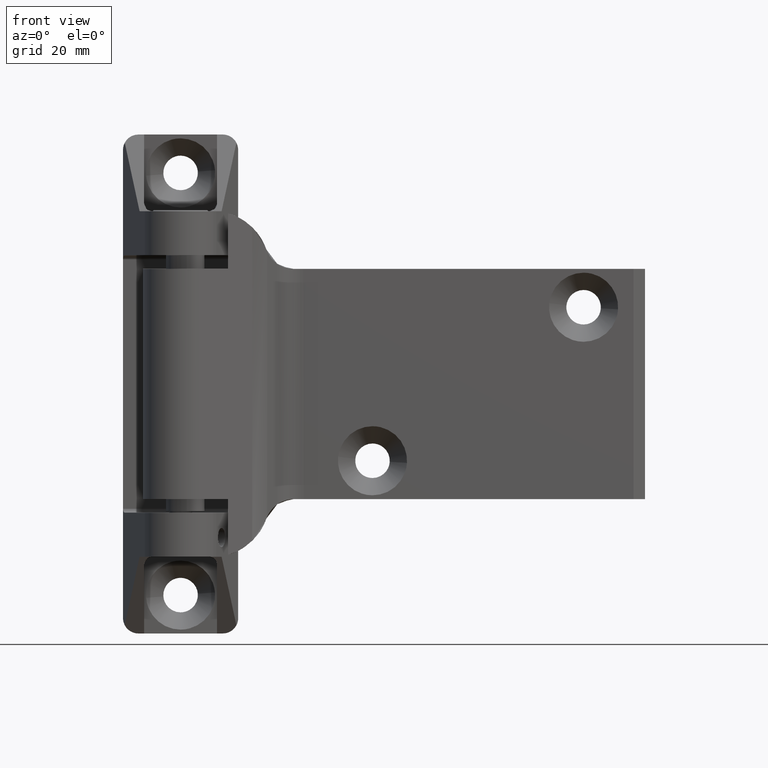
[diagram: clean part render]
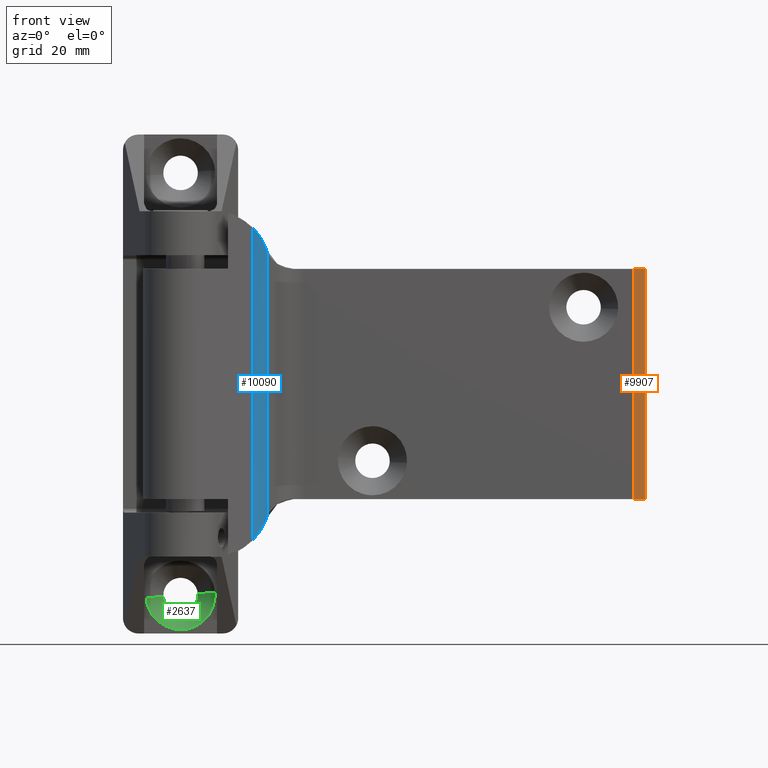
[diagram: same view with three faces highlighted in distinct colors, each labeled with its STEP entity id]
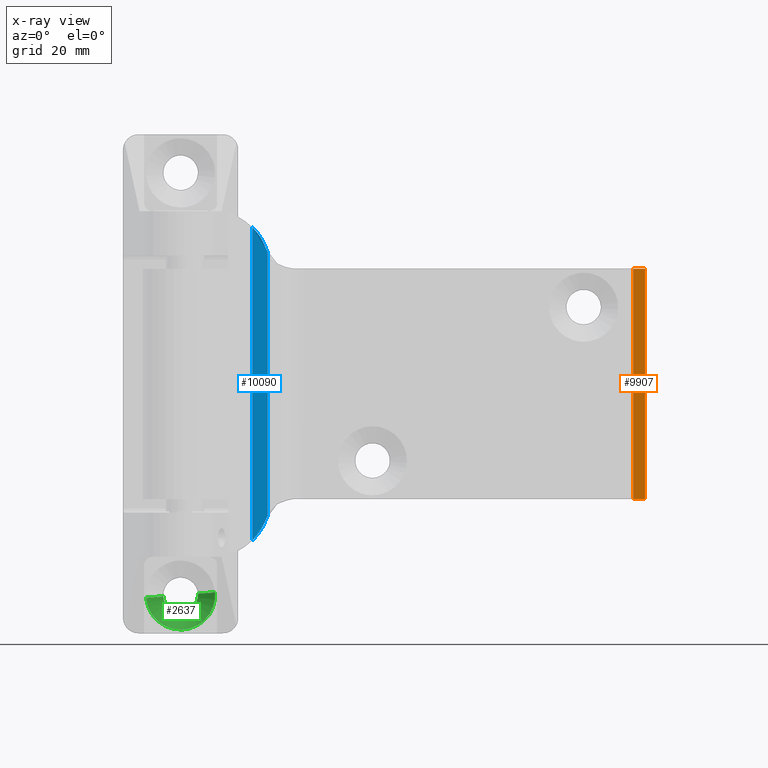
[diagram: x-ray of the same camera — body ghosted, the three highlighted faces saturated]
A machine part, front view with three faces highlighted in distinct colors.
The next image is the same camera in x-ray (body ghosted, the three faces saturated) — at least one of them is partly hidden behind the body in this view.
Their STEP definitions:

[orange] entity #9907 — the highlighted face is a freeform B-spline surface patch.
#9446=CARTESIAN_POINT('',(118.000005452522400,9.800000522471919,29.999985920499700));
#9447=VERTEX_POINT('',#9446);
#9453=CARTESIAN_POINT('',(121.000005595014600,12.800000664952901,29.999985920499700));
#9454=VERTEX_POINT('',#9453);
#9455=CARTESIAN_POINT('',(118.000005452522400,9.800000522471919,29.999985920499700));
#9456=CARTESIAN_POINT('',(121.000005595014600,12.800000664952901,29.999985920499700));
#9457=QUASI_UNIFORM_CURVE('',1,(#9455,#9456),.UNSPECIFIED.,.F.,.U.);
#9458=EDGE_CURVE('',#9447,#9454,#9457,.T.);
#9689=CARTESIAN_POINT('',(118.000005452522400,9.800000522471919,-30.000016929343651));
#9690=VERTEX_POINT('',#9689);
#9727=CARTESIAN_POINT('',(121.000005595014800,12.800000664952901,-30.000016929343548));
#9728=VERTEX_POINT('',#9727);
#9734=CARTESIAN_POINT('',(121.000005595014800,12.800000664952901,-30.000016929343548));
#9735=CARTESIAN_POINT('',(118.000005452522400,9.800000522471919,-30.000016929343651));
#9736=QUASI_UNIFORM_CURVE('',1,(#9734,#9735),.UNSPECIFIED.,.F.,.U.);
#9737=EDGE_CURVE('',#9728,#9690,#9736,.T.);
#9877=CARTESIAN_POINT('',(121.000005595014600,12.800000664952901,29.999985920499700));
#9878=CARTESIAN_POINT('',(121.000005595014800,12.800000664952901,-30.000016929343548));
#9879=QUASI_UNIFORM_CURVE('',1,(#9877,#9878),.UNSPECIFIED.,.F.,.U.);
#9880=EDGE_CURVE('',#9454,#9728,#9879,.T.);
#9892=CARTESIAN_POINT('',(117.850156376568610,9.650151446517970,32.996987073031917));
#9893=CARTESIAN_POINT('',(121.149856307110600,12.949851377060041,32.996987073031917));
#9894=CARTESIAN_POINT('',(117.850156376568610,9.650151446517970,-32.997018618317703));
#9895=CARTESIAN_POINT('',(121.149856307110600,12.949851377060041,-32.997018618317703));
#9896=B_SPLINE_SURFACE_WITH_KNOTS('',1,1,((#9892,#9894),(#9893,#9895)),.UNSPECIFIED.,.F.,.F.,.U.,(2,2),(2,2),(0.0,4.666480393534120),(0.0,65.994005691349628),.UNSPECIFIED.);
#9897=CARTESIAN_POINT('',(118.000005452522400,9.800000522471919,29.999985920499700));
#9898=CARTESIAN_POINT('',(118.000005452522400,9.800000522471919,-30.000016929343651));
#9899=QUASI_UNIFORM_CURVE('',1,(#9897,#9898),.UNSPECIFIED.,.F.,.U.);
#9900=EDGE_CURVE('',#9447,#9690,#9899,.T.);
#9901=ORIENTED_EDGE('',*,*,#9900,.T.);
#9902=ORIENTED_EDGE('',*,*,#9737,.F.);
#9903=ORIENTED_EDGE('',*,*,#9880,.F.);
#9904=ORIENTED_EDGE('',*,*,#9458,.F.);
#9905=EDGE_LOOP('',(#9901,#9902,#9903,#9904));
#9906=FACE_OUTER_BOUND('',#9905,.T.);
#9907=ADVANCED_FACE('',(#9906),#9896,.F.);

[blue] entity #10090 — the highlighted face is a freeform B-spline surface patch.
#9180=CARTESIAN_POINT('',(22.369783500304148,0.980055172589944,35.026017534887352));
#9181=VERTEX_POINT('',#9180);
#9187=CARTESIAN_POINT('',(22.675432990105850,1.476169542492700,34.282030767912701));
#9188=VERTEX_POINT('',#9187);
#9189=CARTESIAN_POINT('',(22.369783500304148,0.980055172589976,35.026017534887387));
#9190=CARTESIAN_POINT('',(22.463076981145601,1.122225020693048,34.759021495786257));
#9191=CARTESIAN_POINT('',(22.566437962103059,1.287384623405065,34.511491762453602));
#9192=CARTESIAN_POINT('',(22.675432990105850,1.476169542492700,34.282030767912701));
#9193=QUASI_UNIFORM_CURVE('',3,(#9189,#9190,#9191,#9192),.UNSPECIFIED.,.F.,.U.);
#9194=EDGE_CURVE('',#9181,#9188,#9193,.T.);
#9292=CARTESIAN_POINT('',(18.665833855718098,-2.411234529328145,40.832703703242103));
#9293=VERTEX_POINT('',#9292);
#9307=CARTESIAN_POINT('',(22.369783500304148,0.980055172589944,35.026017534887352));
#9308=CARTESIAN_POINT('',(22.274320838547599,0.834579711721349,35.299220869422953));
#9309=CARTESIAN_POINT('',(22.171839456364079,0.686549590191545,35.567191928047912));
#9310=CARTESIAN_POINT('',(21.952868427519199,0.388459591304809,36.094487928034830));
#9311=CARTESIAN_POINT('',(21.836376952532529,0.238385347184673,36.353803485139622));
#9312=CARTESIAN_POINT('',(21.465522634182289,-0.211540511074316,37.120541583159152));
#9313=CARTESIAN_POINT('',(21.189901571929639,-0.510997437959561,37.616877592441853));
#9314=CARTESIAN_POINT('',(20.730269458238151,-0.949597839347131,38.342981932260557));
#9315=CARTESIAN_POINT('',(20.569329334380878,-1.094068931324332,38.581913921151617));
#9316=CARTESIAN_POINT('',(20.315564840604960,-1.307111607867606,38.935879662966997));
#9317=CARTESIAN_POINT('',(20.228821552684959,-1.377587655460702,39.053249006229180));
#9318=CARTESIAN_POINT('',(20.051582151124471,-1.516729180293819,39.285842693555800));
#9319=CARTESIAN_POINT('',(19.961109779021349,-1.585381995166145,39.401044932679540));
#9320=CARTESIAN_POINT('',(19.499273286228181,-1.923642253602455,39.971637981973643));
#9321=CARTESIAN_POINT('',(19.099680503669411,-2.178344720435173,40.410884047149622));
#9322=CARTESIAN_POINT('',(18.665833855718098,-2.411234529328145,40.832703703242103));
#9323=B_SPLINE_CURVE_WITH_KNOTS('',3,(#9307,#9308,#9309,#9310,#9311,#9312,#9313,#9314,#9315,#9316,#9317,#9318,#9319,#9320,#9321,#9322),.UNSPECIFIED.,.F.,.U.,(4,2,2,2,2,2,2,4),(0.0,0.125000000000001,0.250000000000001,0.500000000000003,0.625000000000003,0.687500000000003,0.750000000000003,1.0),.UNSPECIFIED.);
#9324=EDGE_CURVE('',#9181,#9293,#9323,.T.);
#9510=CARTESIAN_POINT('',(22.369783444535749,0.980055087604516,-35.026048703343797));
#9511=VERTEX_POINT('',#9510);
#9517=CARTESIAN_POINT('',(18.665833845678051,-2.411234534717690,-40.832734721851253));
#9518=VERTEX_POINT('',#9517);
#9519=CARTESIAN_POINT('',(18.665833845678051,-2.411234534717690,-40.832734721851253));
#9520=CARTESIAN_POINT('',(19.100519449674682,-2.177894373050120,-40.410099367839678));
#9521=CARTESIAN_POINT('',(19.498561417584479,-1.923928463132921,-39.972211329080409));
#9522=CARTESIAN_POINT('',(20.232082965250871,-1.387147652657484,-39.066626089571272));
#9523=CARTESIAN_POINT('',(20.567481945302639,-1.104203912091980,-38.598944748033553));
#9524=CARTESIAN_POINT('',(21.027825105912239,-0.666007915063125,-37.873538022268910));
#9525=CARTESIAN_POINT('',(21.174115645452030,-0.517643790713911,-37.627732761172652));
#9526=CARTESIAN_POINT('',(21.383098377595029,-0.292773700277518,-37.252566719305712));
#9527=CARTESIAN_POINT('',(21.451070614170860,-0.217367492490651,-37.126325380099360));
#9528=CARTESIAN_POINT('',(21.583267081598830,-0.066330003261736,-36.872140128290262));
#9529=CARTESIAN_POINT('',(21.647462841624279,0.009264031190968,-36.744260180010677));
#9530=CARTESIAN_POINT('',(21.834454680416268,0.235914173627233,-36.358103343890463));
#9531=CARTESIAN_POINT('',(21.951663687002529,0.386857850387281,-36.097324244956077));
#9532=CARTESIAN_POINT('',(22.171574260261821,0.686150529752810,-35.567956690383532));
#9533=CARTESIAN_POINT('',(22.274277230520809,0.834513260647416,-35.299376669613643));
#9534=CARTESIAN_POINT('',(22.369783444535749,0.980055087604516,-35.026048703343797));
#9535=B_SPLINE_CURVE_WITH_KNOTS('',3,(#9519,#9520,#9521,#9522,#9523,#9524,#9525,#9526,#9527,#9528,#9529,#9530,#9531,#9532,#9533,#9534),.UNSPECIFIED.,.F.,.U.,(4,2,2,2,2,2,2,4),(0.0,0.249999999999998,0.499999999999996,0.624999999999995,0.687499999999996,0.749999999999996,0.874999999999998,1.0),.UNSPECIFIED.);
#9536=EDGE_CURVE('',#9518,#9511,#9535,.T.);
#9659=CARTESIAN_POINT('',(22.675432990105850,1.476169542492700,-34.282063022724202));
#9660=VERTEX_POINT('',#9659);
#9674=CARTESIAN_POINT('',(22.675432990105850,1.476169542492700,-34.282063022724202));
#9675=CARTESIAN_POINT('',(22.566438000520240,1.287384689945554,-34.511523711561857));
#9676=CARTESIAN_POINT('',(22.463077009788488,1.122225061248527,-34.759053087192108));
#9677=CARTESIAN_POINT('',(22.369783444535749,0.980055087604516,-35.026048703343797));
#9678=QUASI_UNIFORM_CURVE('',3,(#9674,#9675,#9676,#9677),.UNSPECIFIED.,.F.,.U.);
#9679=EDGE_CURVE('',#9660,#9511,#9678,.T.);
#9944=CARTESIAN_POINT('',(18.665833855718098,-2.411234529328145,40.832703703242103));
#9945=CARTESIAN_POINT('',(18.665833845678051,-2.411234534717690,-40.832734721851253));
#9946=QUASI_UNIFORM_CURVE('',1,(#9944,#9945),.UNSPECIFIED.,.F.,.U.);
#9947=EDGE_CURVE('',#9293,#9518,#9946,.T.);
#10060=CARTESIAN_POINT('',(22.675432990105850,1.476169542492700,34.282030767912701));
#10061=CARTESIAN_POINT('',(22.675432990105850,1.476169542492700,-34.282063022724202));
#10062=QUASI_UNIFORM_CURVE('',1,(#10060,#10061),.UNSPECIFIED.,.F.,.U.);
#10063=EDGE_CURVE('',#9188,#9660,#10062,.T.);
#10068=CARTESIAN_POINT('',(18.419647648700956,-2.539106563473530,42.874339663869442));
#10069=CARTESIAN_POINT('',(18.419647648700956,-2.539106563473530,-42.925411581494281));
#10070=CARTESIAN_POINT('',(21.285137937157359,-1.099869619780167,42.874339663869435));
#10071=CARTESIAN_POINT('',(21.285137937157359,-1.099869619780167,-42.925411581494266));
#10072=CARTESIAN_POINT('',(22.811798920837532,1.720014032826538,42.874339663869435));
#10073=CARTESIAN_POINT('',(22.811798920837532,1.720014032826538,-42.925411581494266));
#10081=(BOUNDED_SURFACE()B_SPLINE_SURFACE(1,2,((#10068,#10070,#10072),(#10069,#10071,#10073)),.UNSPECIFIED.,.F.,.F.,.U.)B_SPLINE_SURFACE_WITH_KNOTS((2,2),(3,3),(0.0,85.799751245363723),(0.0,6.262174316638423),.UNSPECIFIED.)GEOMETRIC_REPRESENTATION_ITEM()RATIONAL_B_SPLINE_SURFACE(((0.999509336071844,0.949989015415908,0.992141881025454),(0.999509336071844,0.949989015415908,0.992141881025454)))REPRESENTATION_ITEM('')SURFACE());
#10082=ORIENTED_EDGE('',*,*,#10063,.F.);
#10083=ORIENTED_EDGE('',*,*,#9194,.F.);
#10084=ORIENTED_EDGE('',*,*,#9324,.T.);
#10085=ORIENTED_EDGE('',*,*,#9947,.T.);
#10086=ORIENTED_EDGE('',*,*,#9536,.T.);
#10087=ORIENTED_EDGE('',*,*,#9679,.F.);
#10088=EDGE_LOOP('',(#10082,#10083,#10084,#10085,#10086,#10087));
#10089=FACE_OUTER_BOUND('',#10088,.T.);
#10090=ADVANCED_FACE('',(#10089),#10081,.T.);

[green] entity #2637 — the highlighted face is a freeform B-spline surface patch.
#2435=CARTESIAN_POINT('',(-4.486128214917484,15.999999928654800,-55.353084065083479));
#2436=VERTEX_POINT('',#2435);
#2452=CARTESIAN_POINT('',(1.165290E-012,15.999999928753700,-59.500018330522252));
#2453=VERTEX_POINT('',#2452);
#2454=CARTESIAN_POINT('',(1.165290E-012,15.999999928753700,-59.500018330522252));
#2455=CARTESIAN_POINT('',(-4.159757408649020,15.999999928753702,-59.500018330522252));
#2456=CARTESIAN_POINT('',(-4.486128214917484,15.999999928654798,-55.353084065083486));
#2464=(BOUNDED_CURVE()B_SPLINE_CURVE(2,(#2454,#2455,#2456),.UNSPECIFIED.,.F.,.U.)B_SPLINE_CURVE_WITH_KNOTS((3,3),(0.0,0.236331300575673),.UNSPECIFIED.)CURVE()GEOMETRIC_REPRESENTATION_ITEM()RATIONAL_B_SPLINE_CURVE((1.0,0.723120658672087,0.969723356052664))REPRESENTATION_ITEM(''));
#2465=EDGE_CURVE('',#2453,#2436,#2464,.T.);
#2467=CARTESIAN_POINT('',(4.486128214899908,15.999999928654800,-54.646952168861127));
#2468=VERTEX_POINT('',#2467);
#2469=CARTESIAN_POINT('',(4.486128214899908,15.999999928654804,-54.646952168861141));
#2470=CARTESIAN_POINT('',(4.500000213739814,15.999999928753697,-54.823212626100734));
#2471=CARTESIAN_POINT('',(4.500000213739814,15.999999928753700,-55.000018116783600));
#2472=CARTESIAN_POINT('',(4.500000213739814,15.999999928753700,-59.500018330522252));
#2473=CARTESIAN_POINT('',(1.165290E-012,15.999999928753700,-59.500018330522252));
#2481=(BOUNDED_CURVE()B_SPLINE_CURVE(2,(#2469,#2470,#2471,#2472,#2473),.UNSPECIFIED.,.F.,.U.)B_SPLINE_CURVE_WITH_KNOTS((3,2,3),(0.736331300575672,0.750000000000000,1.0),.UNSPECIFIED.)CURVE()GEOMETRIC_REPRESENTATION_ITEM()RATIONAL_B_SPLINE_CURVE((0.969723356052663,0.983986122514460,1.0,0.707106781186548,1.0))REPRESENTATION_ITEM(''));
#2482=EDGE_CURVE('',#2468,#2453,#2481,.T.);
#2571=CARTESIAN_POINT('',(-4.373975009505729,16.112499934097158,-55.344257415640023));
#2572=CARTESIAN_POINT('',(-4.029735710649306,16.112499934097169,-59.718232425146915));
#2573=CARTESIAN_POINT('',(0.344239298857587,16.112499934097158,-59.373993126290493));
#2574=CARTESIAN_POINT('',(4.718214308364482,16.112499934097169,-59.029753827434085));
#2575=CARTESIAN_POINT('',(4.373975009508060,16.112499934097158,-54.655778817927178));
#2576=CARTESIAN_POINT('',(-9.087213465262559,11.384687209538249,-55.715197326779517));
#2577=CARTESIAN_POINT('',(-8.372034255266643,11.384687209538253,-64.802410792043233));
#2578=CARTESIAN_POINT('',(0.715179209997082,11.384687209538249,-64.087231582047323));
#2579=CARTESIAN_POINT('',(9.802392675260807,11.384687209538253,-63.372052372051392));
#2580=CARTESIAN_POINT('',(9.087213465264890,11.384687209538249,-54.284838906787677));
#2588=(BOUNDED_SURFACE()B_SPLINE_SURFACE(2,1,((#2571,#2576),(#2572,#2577),(#2573,#2578),(#2574,#2579),(#2575,#2580)),.UNSPECIFIED.,.F.,.F.,.U.)B_SPLINE_SURFACE_WITH_KNOTS((3,2,3),(2,2),(0.0,15.102744968417889,30.205489936835779),(0.0,6.686136875431309),.UNSPECIFIED.)GEOMETRIC_REPRESENTATION_ITEM()RATIONAL_B_SPLINE_SURFACE(((1.0,1.0),(0.707106781186548,0.707106781186548),(1.0,1.0),(0.707106781186548,0.707106781186548),(1.0,1.0)))REPRESENTATION_ITEM('')SURFACE());
#2589=ORIENTED_EDGE('',*,*,#2465,.T.);
#2590=CARTESIAN_POINT('',(-8.972256429796005,11.499999714915139,-55.706150012645729));
#2591=VERTEX_POINT('',#2590);
#2592=CARTESIAN_POINT('',(-4.486128214917484,15.999999928654800,-55.353084065083479));
#2593=CARTESIAN_POINT('',(-8.972256429796005,11.499999714915139,-55.706150012645729));
#2594=QUASI_UNIFORM_CURVE('',1,(#2592,#2593),.UNSPECIFIED.,.F.,.U.);
#2595=EDGE_CURVE('',#2436,#2591,#2594,.T.);
#2596=ORIENTED_EDGE('',*,*,#2595,.T.);
#2597=CARTESIAN_POINT('',(1.165290E-012,11.499999715015299,-64.000018544260683));
#2598=VERTEX_POINT('',#2597);
#2599=CARTESIAN_POINT('',(1.165290E-012,11.499999715015299,-64.000018544260683));
#2600=CARTESIAN_POINT('',(-8.319514818656852,11.499999715015301,-64.000018544260683));
#2601=CARTESIAN_POINT('',(-8.972256429796005,11.499999714915141,-55.706150012645729));
#2609=(BOUNDED_CURVE()B_SPLINE_CURVE(2,(#2599,#2600,#2601),.UNSPECIFIED.,.F.,.U.)B_SPLINE_CURVE_WITH_KNOTS((3,3),(0.0,0.236331300603565),.UNSPECIFIED.)CURVE()GEOMETRIC_REPRESENTATION_ITEM()RATIONAL_B_SPLINE_CURVE((1.0,0.723120658639409,0.969723356110874))REPRESENTATION_ITEM(''));
#2610=EDGE_CURVE('',#2598,#2591,#2609,.T.);
#2611=ORIENTED_EDGE('',*,*,#2610,.F.);
#2612=CARTESIAN_POINT('',(8.972256429798337,11.499999714915139,-54.293886220921472));
#2613=VERTEX_POINT('',#2612);
#2614=CARTESIAN_POINT('',(8.972256429798337,11.499999714915139,-54.293886220921465));
#2615=CARTESIAN_POINT('',(9.000000427478245,11.499999715015303,-54.646407136151211));
#2616=CARTESIAN_POINT('',(9.000000427478245,11.499999715015299,-55.000018116783600));
#2617=CARTESIAN_POINT('',(9.000000427478245,11.499999715015301,-64.000018544260683));
#2618=CARTESIAN_POINT('',(1.165290E-012,11.499999715015299,-64.000018544260683));
#2626=(BOUNDED_CURVE()B_SPLINE_CURVE(2,(#2614,#2615,#2616,#2617,#2618),.UNSPECIFIED.,.F.,.U.)B_SPLINE_CURVE_WITH_KNOTS((3,2,3),(0.736331300603565,0.750000000000000,1.0),.UNSPECIFIED.)CURVE()GEOMETRIC_REPRESENTATION_ITEM()RATIONAL_B_SPLINE_CURVE((0.969723356110874,0.983986122547139,1.0,0.707106781186548,1.0))REPRESENTATION_ITEM(''));
#2627=EDGE_CURVE('',#2613,#2598,#2626,.T.);
#2628=ORIENTED_EDGE('',*,*,#2627,.F.);
#2629=CARTESIAN_POINT('',(4.486128214899908,15.999999928654800,-54.646952168861127));
#2630=CARTESIAN_POINT('',(8.972256429798337,11.499999714915139,-54.293886220921472));
#2631=QUASI_UNIFORM_CURVE('',1,(#2629,#2630),.UNSPECIFIED.,.F.,.U.);
#2632=EDGE_CURVE('',#2468,#2613,#2631,.T.);
#2633=ORIENTED_EDGE('',*,*,#2632,.F.);
#2634=ORIENTED_EDGE('',*,*,#2482,.T.);
#2635=EDGE_LOOP('',(#2589,#2596,#2611,#2628,#2633,#2634));
#2636=FACE_OUTER_BOUND('',#2635,.T.);
#2637=ADVANCED_FACE('',(#2636),#2588,.F.);